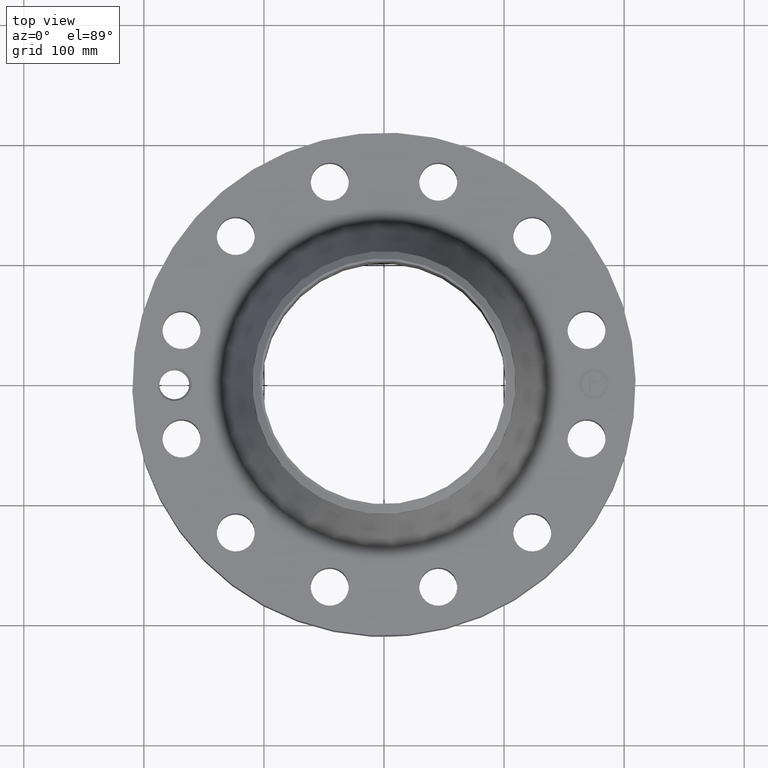
[diagram: clean part render]
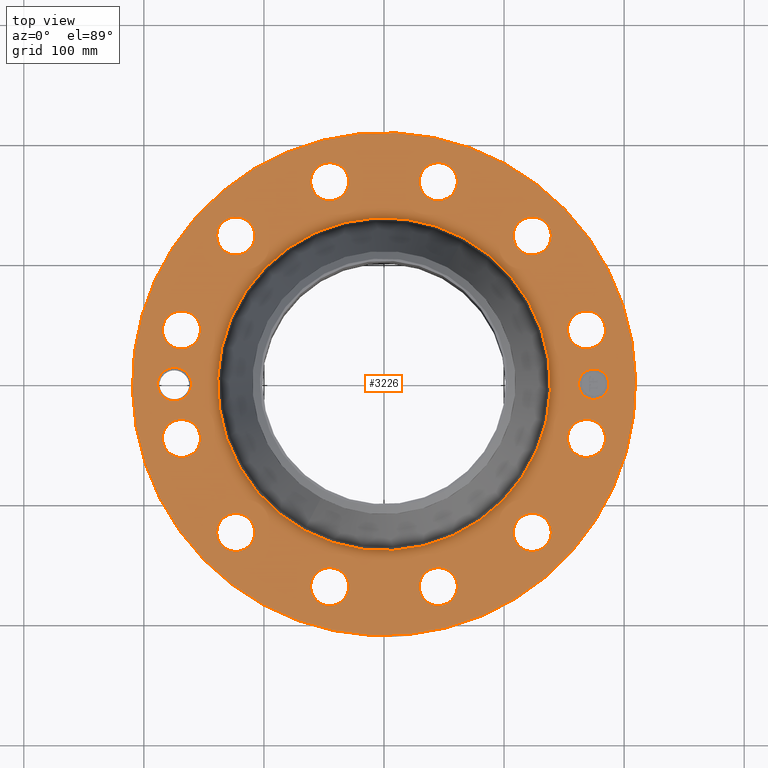
[diagram: same view with one face highlighted and labeled with its STEP entity id]
A machine part, top view. The second image highlights one B-rep face of the part: STEP entity #3226.
In plain terms, the highlighted planar face has unit normal (0, 0, -1).
Its self-contained STEP definition (entity closure, byte-faithful):
#2190=AXIS2_PLACEMENT_3D('Circle Axis2P3D',#2188,#2189,$) ;
#2216=AXIS2_PLACEMENT_3D('Circle Axis2P3D',#2214,#2215,$) ;
#2914=AXIS2_PLACEMENT_3D('Plane Axis2P3D',#2911,#2912,#2913) ;
#2918=AXIS2_PLACEMENT_3D('Circle Axis2P3D',#2916,#2917,$) ;
#2927=AXIS2_PLACEMENT_3D('Circle Axis2P3D',#2925,#2926,$) ;
#2964=AXIS2_PLACEMENT_3D('Circle Axis2P3D',#2962,#2963,$) ;
#2971=AXIS2_PLACEMENT_3D('Circle Axis2P3D',#2969,#2970,$) ;
#2978=AXIS2_PLACEMENT_3D('Circle Axis2P3D',#2976,#2977,$) ;
#2990=AXIS2_PLACEMENT_3D('Circle Axis2P3D',#2988,#2989,$) ;
#2999=AXIS2_PLACEMENT_3D('Circle Axis2P3D',#2997,#2998,$) ;
#3012=AXIS2_PLACEMENT_3D('Circle Axis2P3D',#3010,#3011,$) ;
#3021=AXIS2_PLACEMENT_3D('Circle Axis2P3D',#3019,#3020,$) ;
#3030=AXIS2_PLACEMENT_3D('Circle Axis2P3D',#3028,#3029,$) ;
#3039=AXIS2_PLACEMENT_3D('Circle Axis2P3D',#3037,#3038,$) ;
#3048=AXIS2_PLACEMENT_3D('Circle Axis2P3D',#3046,#3047,$) ;
#3057=AXIS2_PLACEMENT_3D('Circle Axis2P3D',#3055,#3056,$) ;
#3066=AXIS2_PLACEMENT_3D('Circle Axis2P3D',#3064,#3065,$) ;
#3075=AXIS2_PLACEMENT_3D('Circle Axis2P3D',#3073,#3074,$) ;
#3084=AXIS2_PLACEMENT_3D('Circle Axis2P3D',#3082,#3083,$) ;
#3093=AXIS2_PLACEMENT_3D('Circle Axis2P3D',#3091,#3092,$) ;
#3102=AXIS2_PLACEMENT_3D('Circle Axis2P3D',#3100,#3101,$) ;
#3111=AXIS2_PLACEMENT_3D('Circle Axis2P3D',#3109,#3110,$) ;
#3120=AXIS2_PLACEMENT_3D('Circle Axis2P3D',#3118,#3119,$) ;
#3129=AXIS2_PLACEMENT_3D('Circle Axis2P3D',#3127,#3128,$) ;
#3138=AXIS2_PLACEMENT_3D('Circle Axis2P3D',#3136,#3137,$) ;
#3147=AXIS2_PLACEMENT_3D('Circle Axis2P3D',#3145,#3146,$) ;
#3156=AXIS2_PLACEMENT_3D('Circle Axis2P3D',#3154,#3155,$) ;
#3165=AXIS2_PLACEMENT_3D('Circle Axis2P3D',#3163,#3164,$) ;
#3174=AXIS2_PLACEMENT_3D('Circle Axis2P3D',#3172,#3173,$) ;
#3183=AXIS2_PLACEMENT_3D('Circle Axis2P3D',#3181,#3182,$) ;
#3192=AXIS2_PLACEMENT_3D('Circle Axis2P3D',#3190,#3191,$) ;
#3201=AXIS2_PLACEMENT_3D('Circle Axis2P3D',#3199,#3200,$) ;
#3210=AXIS2_PLACEMENT_3D('Circle Axis2P3D',#3208,#3209,$) ;
#3219=AXIS2_PLACEMENT_3D('Circle Axis2P3D',#3217,#3218,$) ;
#2188=CARTESIAN_POINT('Axis2P3D Location',(0.,0.,2.50200000001)) ;
#2192=CARTESIAN_POINT('Vertex',(-2.6157815767,-4.78815605883,2.50200000001)) ;
#2194=CARTESIAN_POINT('Vertex',(2.6157815767,4.78815605883,2.50200000001)) ;
#2214=CARTESIAN_POINT('Axis2P3D Location',(0.,0.,2.50200000001)) ;
#2911=CARTESIAN_POINT('Axis2P3D Location',(0.,8.25000000003,2.50200000001)) ;
#2916=CARTESIAN_POINT('Axis2P3D Location',(0.,0.,2.50200000001)) ;
#2920=CARTESIAN_POINT('Vertex',(3.9552606935,7.24005613562,2.50200000001)) ;
#2922=CARTESIAN_POINT('Vertex',(-3.9552606935,-7.24005613562,2.50200000001)) ;
#2925=CARTESIAN_POINT('Axis2P3D Location',(0.,0.,2.50200000001)) ;
#2935=CARTESIAN_POINT('Control Point',(-6.31250000003,2.23792987641E-015,2.50200000001)) ;
#2936=CARTESIAN_POINT('Control Point',(-6.3144627074,0.0486163942416,2.50200000001)) ;
#2937=CARTESIAN_POINT('Control Point',(-6.32168225685,0.096921544971,2.50200000001)) ;
#2938=CARTESIAN_POINT('Control Point',(-6.33411614782,0.144151132456,2.50200000001)) ;
#2939=CARTESIAN_POINT('Control Point',(-6.3523281623,0.191577689533,2.50200000001)) ;
#2940=CARTESIAN_POINT('Control Point',(-6.375599706,0.236272060628,2.50200000001)) ;
#2941=CARTESIAN_POINT('Control Point',(-6.37660430834,0.238178684845,2.50200000001)) ;
#2942=CARTESIAN_POINT('Control Point',(-6.37761810192,0.240080190953,2.50200000001)) ;
#2943=CARTESIAN_POINT('Control Point',(-6.37864105331,0.241976519561,2.50200000001)) ;
#2944=CARTESIAN_POINT('Vertex',(-6.31250000003,2.23792987641E-015,2.50200000001)) ;
#2946=CARTESIAN_POINT('Vertex',(-6.37864105331,0.241976519561,2.50200000001)) ;
#2950=CARTESIAN_POINT('Control Point',(-6.31250000003,0.,2.50200000001)) ;
#2951=CARTESIAN_POINT('Control Point',(-6.31446331449,-0.0486314333387,2.50200000001)) ;
#2952=CARTESIAN_POINT('Control Point',(-6.32168673113,-0.096951428915,2.50200000001)) ;
#2953=CARTESIAN_POINT('Control Point',(-6.3341191924,-0.14417695463,2.50200000001)) ;
#2954=CARTESIAN_POINT('Control Point',(-6.35234827521,-0.191651047543,2.50200000001)) ;
#2955=CARTESIAN_POINT('Control Point',(-6.37563536412,-0.236368997497,2.50200000001)) ;
#2956=CARTESIAN_POINT('Control Point',(-6.37667433507,-0.238339773859,2.50200000001)) ;
#2957=CARTESIAN_POINT('Control Point',(-6.37772311114,-0.24030503582,2.50200000001)) ;
#2958=CARTESIAN_POINT('Control Point',(-6.3787816546,-0.242264718164,2.50200000001)) ;
#2959=CARTESIAN_POINT('Vertex',(-6.3787816546,-0.242264718164,2.50200000001)) ;
#2962=CARTESIAN_POINT('Axis2P3D Location',(-6.87500000003,1.1189649382E-015,2.50200000001)) ;
#2966=CARTESIAN_POINT('Vertex',(-6.39039890935,-0.264738782418,2.50200000001)) ;
#2969=CARTESIAN_POINT('Axis2P3D Location',(-6.87500000003,1.1189649382E-015,2.50200000001)) ;
#2973=CARTESIAN_POINT('Vertex',(-7.35960109071,0.264738782418,2.50200000001)) ;
#2976=CARTESIAN_POINT('Axis2P3D Location',(-6.87500000003,1.1189649382E-015,2.50200000001)) ;
#2988=CARTESIAN_POINT('Axis2P3D Location',(6.64074005576,-1.77938093509,2.50200000001)) ;
#2992=CARTESIAN_POINT('Vertex',(6.09225095458,-1.47973997346,2.50200000001)) ;
#2994=CARTESIAN_POINT('Vertex',(7.18922915695,-2.07902189672,2.50200000001)) ;
#2997=CARTESIAN_POINT('Axis2P3D Location',(6.64074005576,-1.77938093509,2.50200000001)) ;
#3010=CARTESIAN_POINT('Axis2P3D Location',(4.86135912068,-4.86135912068,2.50200000001)) ;
#3014=CARTESIAN_POINT('Vertex',(5.18654413519,-5.39510035605,2.50200000001)) ;
#3016=CARTESIAN_POINT('Vertex',(4.53617410617,-4.3276178853,2.50200000001)) ;
#3019=CARTESIAN_POINT('Axis2P3D Location',(4.86135912068,-4.86135912068,2.50200000001)) ;
#3028=CARTESIAN_POINT('Axis2P3D Location',(1.77938093509,-6.64074005576,2.50200000001)) ;
#3032=CARTESIAN_POINT('Vertex',(1.79412880089,-7.2655660319,2.50200000001)) ;
#3034=CARTESIAN_POINT('Vertex',(1.76463306928,-6.01591407963,2.50200000001)) ;
#3037=CARTESIAN_POINT('Axis2P3D Location',(1.77938093509,-6.64074005576,2.50200000001)) ;
#3046=CARTESIAN_POINT('Axis2P3D Location',(-1.77938093509,-6.64074005576,2.50200000001)) ;
#3050=CARTESIAN_POINT('Vertex',(-2.07902189672,-7.18922915695,2.50200000001)) ;
#3052=CARTESIAN_POINT('Vertex',(-1.47973997346,-6.09225095458,2.50200000001)) ;
#3055=CARTESIAN_POINT('Axis2P3D Location',(-1.77938093509,-6.64074005576,2.50200000001)) ;
#3064=CARTESIAN_POINT('Axis2P3D Location',(-4.86135912068,-4.86135912068,2.50200000001)) ;
#3068=CARTESIAN_POINT('Vertex',(-5.39510035605,-5.18654413519,2.50200000001)) ;
#3070=CARTESIAN_POINT('Vertex',(-4.3276178853,-4.53617410617,2.50200000001)) ;
#3073=CARTESIAN_POINT('Axis2P3D Location',(-4.86135912068,-4.86135912068,2.50200000001)) ;
#3082=CARTESIAN_POINT('Axis2P3D Location',(-6.64074005576,-1.77938093509,2.50200000001)) ;
#3086=CARTESIAN_POINT('Vertex',(-7.2655660319,-1.79412880089,2.50200000001)) ;
#3088=CARTESIAN_POINT('Vertex',(-6.01591407963,-1.76463306928,2.50200000001)) ;
#3091=CARTESIAN_POINT('Axis2P3D Location',(-6.64074005576,-1.77938093509,2.50200000001)) ;
#3100=CARTESIAN_POINT('Axis2P3D Location',(-6.64074005576,1.77938093509,2.50200000001)) ;
#3104=CARTESIAN_POINT('Vertex',(-7.18922915695,2.07902189672,2.50200000001)) ;
#3106=CARTESIAN_POINT('Vertex',(-6.09225095458,1.47973997346,2.50200000001)) ;
#3109=CARTESIAN_POINT('Axis2P3D Location',(-6.64074005576,1.77938093509,2.50200000001)) ;
#3118=CARTESIAN_POINT('Axis2P3D Location',(-4.86135912068,4.86135912068,2.50200000001)) ;
#3122=CARTESIAN_POINT('Vertex',(-5.18654413519,5.39510035605,2.50200000001)) ;
#3124=CARTESIAN_POINT('Vertex',(-4.53617410617,4.3276178853,2.50200000001)) ;
#3127=CARTESIAN_POINT('Axis2P3D Location',(-4.86135912068,4.86135912068,2.50200000001)) ;
#3136=CARTESIAN_POINT('Axis2P3D Location',(-1.77938093509,6.64074005576,2.50200000001)) ;
#3140=CARTESIAN_POINT('Vertex',(-1.79412880089,7.2655660319,2.50200000001)) ;
#3142=CARTESIAN_POINT('Vertex',(-1.76463306928,6.01591407963,2.50200000001)) ;
#3145=CARTESIAN_POINT('Axis2P3D Location',(-1.77938093509,6.64074005576,2.50200000001)) ;
#3154=CARTESIAN_POINT('Axis2P3D Location',(1.77938093509,6.64074005576,2.50200000001)) ;
#3158=CARTESIAN_POINT('Vertex',(2.07902189672,7.18922915695,2.50200000001)) ;
#3160=CARTESIAN_POINT('Vertex',(1.47973997346,6.09225095458,2.50200000001)) ;
#3163=CARTESIAN_POINT('Axis2P3D Location',(1.77938093509,6.64074005576,2.50200000001)) ;
#3172=CARTESIAN_POINT('Axis2P3D Location',(4.86135912068,4.86135912068,2.50200000001)) ;
#3176=CARTESIAN_POINT('Vertex',(5.39510035605,5.18654413519,2.50200000001)) ;
#3178=CARTESIAN_POINT('Vertex',(4.3276178853,4.53617410617,2.50200000001)) ;
#3181=CARTESIAN_POINT('Axis2P3D Location',(4.86135912068,4.86135912068,2.50200000001)) ;
#3190=CARTESIAN_POINT('Axis2P3D Location',(6.64074005576,1.77938093509,2.50200000001)) ;
#3194=CARTESIAN_POINT('Vertex',(7.2655660319,1.79412880089,2.50200000001)) ;
#3196=CARTESIAN_POINT('Vertex',(6.01591407963,1.76463306928,2.50200000001)) ;
#3199=CARTESIAN_POINT('Axis2P3D Location',(6.64074005576,1.77938093509,2.50200000001)) ;
#3208=CARTESIAN_POINT('Axis2P3D Location',(6.87500000003,0.,2.50200000001)) ;
#3212=CARTESIAN_POINT('Vertex',(6.87500000003,0.499999995002,2.50200000001)) ;
#3214=CARTESIAN_POINT('Vertex',(6.87500000003,-0.499999995002,2.50200000001)) ;
#3217=CARTESIAN_POINT('Axis2P3D Location',(6.87500000003,0.,2.50200000001)) ;
#2189=DIRECTION('Axis2P3D Direction',(0.,0.,-0.0393700787402)) ;
#2215=DIRECTION('Axis2P3D Direction',(0.,0.,-0.0393700787402)) ;
#2912=DIRECTION('Axis2P3D Direction',(0.,0.,-0.0393700787402)) ;
#2913=DIRECTION('Axis2P3D XDirection',(0.0393700787402,0.,0.)) ;
#2917=DIRECTION('Axis2P3D Direction',(0.,0.,-0.0393700787402)) ;
#2926=DIRECTION('Axis2P3D Direction',(0.,0.,-0.0393700787402)) ;
#2963=DIRECTION('Axis2P3D Direction',(0.,0.,-0.0393700787402)) ;
#2970=DIRECTION('Axis2P3D Direction',(0.,0.,-0.0393700787402)) ;
#2977=DIRECTION('Axis2P3D Direction',(0.,0.,-0.0393700787402)) ;
#2989=DIRECTION('Axis2P3D Direction',(0.,0.,-0.0393700787402)) ;
#2998=DIRECTION('Axis2P3D Direction',(0.,0.,-0.0393700787402)) ;
#3011=DIRECTION('Axis2P3D Direction',(0.,0.,-0.0393700787402)) ;
#3020=DIRECTION('Axis2P3D Direction',(0.,0.,-0.0393700787402)) ;
#3029=DIRECTION('Axis2P3D Direction',(0.,0.,-0.0393700787402)) ;
#3038=DIRECTION('Axis2P3D Direction',(0.,0.,-0.0393700787402)) ;
#3047=DIRECTION('Axis2P3D Direction',(0.,0.,-0.0393700787402)) ;
#3056=DIRECTION('Axis2P3D Direction',(0.,0.,-0.0393700787402)) ;
#3065=DIRECTION('Axis2P3D Direction',(0.,0.,-0.0393700787402)) ;
#3074=DIRECTION('Axis2P3D Direction',(0.,0.,-0.0393700787402)) ;
#3083=DIRECTION('Axis2P3D Direction',(0.,0.,-0.0393700787402)) ;
#3092=DIRECTION('Axis2P3D Direction',(0.,0.,-0.0393700787402)) ;
#3101=DIRECTION('Axis2P3D Direction',(0.,0.,-0.0393700787402)) ;
#3110=DIRECTION('Axis2P3D Direction',(0.,0.,-0.0393700787402)) ;
#3119=DIRECTION('Axis2P3D Direction',(0.,0.,-0.0393700787402)) ;
#3128=DIRECTION('Axis2P3D Direction',(0.,0.,-0.0393700787402)) ;
#3137=DIRECTION('Axis2P3D Direction',(0.,0.,-0.0393700787402)) ;
#3146=DIRECTION('Axis2P3D Direction',(0.,0.,-0.0393700787402)) ;
#3155=DIRECTION('Axis2P3D Direction',(0.,0.,-0.0393700787402)) ;
#3164=DIRECTION('Axis2P3D Direction',(0.,0.,-0.0393700787402)) ;
#3173=DIRECTION('Axis2P3D Direction',(0.,0.,-0.0393700787402)) ;
#3182=DIRECTION('Axis2P3D Direction',(0.,0.,-0.0393700787402)) ;
#3191=DIRECTION('Axis2P3D Direction',(0.,0.,-0.0393700787402)) ;
#3200=DIRECTION('Axis2P3D Direction',(0.,0.,-0.0393700787402)) ;
#3209=DIRECTION('Axis2P3D Direction',(0.,0.,-0.0393700787402)) ;
#3218=DIRECTION('Axis2P3D Direction',(0.,0.,-0.0393700787402)) ;
#2931=ORIENTED_EDGE('',*,*,#2924,.F.) ;
#2932=ORIENTED_EDGE('',*,*,#2929,.F.) ;
#2982=ORIENTED_EDGE('',*,*,#2948,.F.) ;
#2983=ORIENTED_EDGE('',*,*,#2961,.T.) ;
#2984=ORIENTED_EDGE('',*,*,#2968,.T.) ;
#2985=ORIENTED_EDGE('',*,*,#2975,.T.) ;
#2986=ORIENTED_EDGE('',*,*,#2980,.T.) ;
#3003=ORIENTED_EDGE('',*,*,#2996,.T.) ;
#3004=ORIENTED_EDGE('',*,*,#3001,.T.) ;
#3007=ORIENTED_EDGE('',*,*,#2196,.T.) ;
#3008=ORIENTED_EDGE('',*,*,#2218,.T.) ;
#3025=ORIENTED_EDGE('',*,*,#3018,.T.) ;
#3026=ORIENTED_EDGE('',*,*,#3023,.T.) ;
#3043=ORIENTED_EDGE('',*,*,#3036,.T.) ;
#3044=ORIENTED_EDGE('',*,*,#3041,.T.) ;
#3061=ORIENTED_EDGE('',*,*,#3054,.T.) ;
#3062=ORIENTED_EDGE('',*,*,#3059,.T.) ;
#3079=ORIENTED_EDGE('',*,*,#3072,.T.) ;
#3080=ORIENTED_EDGE('',*,*,#3077,.T.) ;
#3097=ORIENTED_EDGE('',*,*,#3090,.T.) ;
#3098=ORIENTED_EDGE('',*,*,#3095,.T.) ;
#3115=ORIENTED_EDGE('',*,*,#3108,.T.) ;
#3116=ORIENTED_EDGE('',*,*,#3113,.T.) ;
#3133=ORIENTED_EDGE('',*,*,#3126,.T.) ;
#3134=ORIENTED_EDGE('',*,*,#3131,.T.) ;
#3151=ORIENTED_EDGE('',*,*,#3144,.T.) ;
#3152=ORIENTED_EDGE('',*,*,#3149,.T.) ;
#3169=ORIENTED_EDGE('',*,*,#3162,.T.) ;
#3170=ORIENTED_EDGE('',*,*,#3167,.T.) ;
#3187=ORIENTED_EDGE('',*,*,#3180,.T.) ;
#3188=ORIENTED_EDGE('',*,*,#3185,.T.) ;
#3205=ORIENTED_EDGE('',*,*,#3198,.T.) ;
#3206=ORIENTED_EDGE('',*,*,#3203,.T.) ;
#3223=ORIENTED_EDGE('',*,*,#3216,.T.) ;
#3224=ORIENTED_EDGE('',*,*,#3221,.T.) ;
#2987=FACE_BOUND('',#2981,.T.) ;
#3005=FACE_BOUND('',#3002,.T.) ;
#3009=FACE_BOUND('',#3006,.T.) ;
#3027=FACE_BOUND('',#3024,.T.) ;
#3045=FACE_BOUND('',#3042,.T.) ;
#3063=FACE_BOUND('',#3060,.T.) ;
#3081=FACE_BOUND('',#3078,.T.) ;
#3099=FACE_BOUND('',#3096,.T.) ;
#3117=FACE_BOUND('',#3114,.T.) ;
#3135=FACE_BOUND('',#3132,.T.) ;
#3153=FACE_BOUND('',#3150,.T.) ;
#3171=FACE_BOUND('',#3168,.T.) ;
#3189=FACE_BOUND('',#3186,.T.) ;
#3207=FACE_BOUND('',#3204,.T.) ;
#3225=FACE_BOUND('',#3222,.T.) ;
#3226=ADVANCED_FACE('PartBody',(#2933,#2987,#3005,#3009,#3027,#3045,#3063,#3081,#3099,#3117,#3135,#3153,#3171,#3189,#3207,#3225),#2915,.F.) ;
#2934=B_SPLINE_CURVE_WITH_KNOTS('',5,(#2935,#2936,#2937,#2938,#2939,#2940,#2941,#2942,#2943),.UNSPECIFIED.,.F.,.U.,(6,3,6),(0.,8.47636596167,8.855120132),.UNSPECIFIED.) ;
#2949=B_SPLINE_CURVE_WITH_KNOTS('',5,(#2950,#2951,#2952,#2953,#2954,#2955,#2956,#2957,#2958),.UNSPECIFIED.,.F.,.U.,(6,3,6),(0.,8.47898805828,8.87102627466),.UNSPECIFIED.) ;
#2191=CIRCLE('generated circle',#2190,5.45607475212) ;
#2217=CIRCLE('generated circle',#2216,5.45607475212) ;
#2919=CIRCLE('generated circle',#2918,8.25000000003) ;
#2928=CIRCLE('generated circle',#2927,8.25000000003) ;
#2965=CIRCLE('generated circle',#2964,0.552200000002) ;
#2972=CIRCLE('generated circle',#2971,0.552200000002) ;
#2979=CIRCLE('generated circle',#2978,0.552200000002) ;
#2991=CIRCLE('generated circle',#2990,0.625000000002) ;
#3000=CIRCLE('generated circle',#2999,0.625000000002) ;
#3013=CIRCLE('generated circle',#3012,0.625000000003) ;
#3022=CIRCLE('generated circle',#3021,0.625000000003) ;
#3031=CIRCLE('generated circle',#3030,0.625000000003) ;
#3040=CIRCLE('generated circle',#3039,0.625000000003) ;
#3049=CIRCLE('generated circle',#3048,0.625000000002) ;
#3058=CIRCLE('generated circle',#3057,0.625000000002) ;
#3067=CIRCLE('generated circle',#3066,0.625000000003) ;
#3076=CIRCLE('generated circle',#3075,0.625000000003) ;
#3085=CIRCLE('generated circle',#3084,0.625000000003) ;
#3094=CIRCLE('generated circle',#3093,0.625000000003) ;
#3103=CIRCLE('generated circle',#3102,0.625000000002) ;
#3112=CIRCLE('generated circle',#3111,0.625000000002) ;
#3121=CIRCLE('generated circle',#3120,0.625000000003) ;
#3130=CIRCLE('generated circle',#3129,0.625000000003) ;
#3139=CIRCLE('generated circle',#3138,0.625000000003) ;
#3148=CIRCLE('generated circle',#3147,0.625000000003) ;
#3157=CIRCLE('generated circle',#3156,0.625000000002) ;
#3166=CIRCLE('generated circle',#3165,0.625000000002) ;
#3175=CIRCLE('generated circle',#3174,0.625000000003) ;
#3184=CIRCLE('generated circle',#3183,0.625000000003) ;
#3193=CIRCLE('generated circle',#3192,0.625000000003) ;
#3202=CIRCLE('generated circle',#3201,0.625000000003) ;
#3211=CIRCLE('generated circle',#3210,0.499999995002) ;
#3220=CIRCLE('generated circle',#3219,0.499999995002) ;
#2196=EDGE_CURVE('',#2193,#2195,#2191,.T.) ;
#2218=EDGE_CURVE('',#2195,#2193,#2217,.T.) ;
#2924=EDGE_CURVE('',#2921,#2923,#2919,.T.) ;
#2929=EDGE_CURVE('',#2923,#2921,#2928,.T.) ;
#2948=EDGE_CURVE('',#2945,#2947,#2934,.T.) ;
#2961=EDGE_CURVE('',#2945,#2960,#2949,.T.) ;
#2968=EDGE_CURVE('',#2960,#2967,#2965,.T.) ;
#2975=EDGE_CURVE('',#2967,#2974,#2972,.T.) ;
#2980=EDGE_CURVE('',#2974,#2947,#2979,.T.) ;
#2996=EDGE_CURVE('',#2993,#2995,#2991,.T.) ;
#3001=EDGE_CURVE('',#2995,#2993,#3000,.T.) ;
#3018=EDGE_CURVE('',#3015,#3017,#3013,.T.) ;
#3023=EDGE_CURVE('',#3017,#3015,#3022,.T.) ;
#3036=EDGE_CURVE('',#3033,#3035,#3031,.T.) ;
#3041=EDGE_CURVE('',#3035,#3033,#3040,.T.) ;
#3054=EDGE_CURVE('',#3051,#3053,#3049,.T.) ;
#3059=EDGE_CURVE('',#3053,#3051,#3058,.T.) ;
#3072=EDGE_CURVE('',#3069,#3071,#3067,.T.) ;
#3077=EDGE_CURVE('',#3071,#3069,#3076,.T.) ;
#3090=EDGE_CURVE('',#3087,#3089,#3085,.T.) ;
#3095=EDGE_CURVE('',#3089,#3087,#3094,.T.) ;
#3108=EDGE_CURVE('',#3105,#3107,#3103,.T.) ;
#3113=EDGE_CURVE('',#3107,#3105,#3112,.T.) ;
#3126=EDGE_CURVE('',#3123,#3125,#3121,.T.) ;
#3131=EDGE_CURVE('',#3125,#3123,#3130,.T.) ;
#3144=EDGE_CURVE('',#3141,#3143,#3139,.T.) ;
#3149=EDGE_CURVE('',#3143,#3141,#3148,.T.) ;
#3162=EDGE_CURVE('',#3159,#3161,#3157,.T.) ;
#3167=EDGE_CURVE('',#3161,#3159,#3166,.T.) ;
#3180=EDGE_CURVE('',#3177,#3179,#3175,.T.) ;
#3185=EDGE_CURVE('',#3179,#3177,#3184,.T.) ;
#3198=EDGE_CURVE('',#3195,#3197,#3193,.T.) ;
#3203=EDGE_CURVE('',#3197,#3195,#3202,.T.) ;
#3216=EDGE_CURVE('',#3213,#3215,#3211,.T.) ;
#3221=EDGE_CURVE('',#3215,#3213,#3220,.T.) ;
#2930=EDGE_LOOP('',(#2931,#2932)) ;
#2981=EDGE_LOOP('',(#2982,#2983,#2984,#2985,#2986)) ;
#3002=EDGE_LOOP('',(#3003,#3004)) ;
#3006=EDGE_LOOP('',(#3007,#3008)) ;
#3024=EDGE_LOOP('',(#3025,#3026)) ;
#3042=EDGE_LOOP('',(#3043,#3044)) ;
#3060=EDGE_LOOP('',(#3061,#3062)) ;
#3078=EDGE_LOOP('',(#3079,#3080)) ;
#3096=EDGE_LOOP('',(#3097,#3098)) ;
#3114=EDGE_LOOP('',(#3115,#3116)) ;
#3132=EDGE_LOOP('',(#3133,#3134)) ;
#3150=EDGE_LOOP('',(#3151,#3152)) ;
#3168=EDGE_LOOP('',(#3169,#3170)) ;
#3186=EDGE_LOOP('',(#3187,#3188)) ;
#3204=EDGE_LOOP('',(#3205,#3206)) ;
#3222=EDGE_LOOP('',(#3223,#3224)) ;
#2933=FACE_OUTER_BOUND('',#2930,.T.) ;
#2915=PLANE('',#2914) ;
#2193=VERTEX_POINT('',#2192) ;
#2195=VERTEX_POINT('',#2194) ;
#2921=VERTEX_POINT('',#2920) ;
#2923=VERTEX_POINT('',#2922) ;
#2945=VERTEX_POINT('',#2944) ;
#2947=VERTEX_POINT('',#2946) ;
#2960=VERTEX_POINT('',#2959) ;
#2967=VERTEX_POINT('',#2966) ;
#2974=VERTEX_POINT('',#2973) ;
#2993=VERTEX_POINT('',#2992) ;
#2995=VERTEX_POINT('',#2994) ;
#3015=VERTEX_POINT('',#3014) ;
#3017=VERTEX_POINT('',#3016) ;
#3033=VERTEX_POINT('',#3032) ;
#3035=VERTEX_POINT('',#3034) ;
#3051=VERTEX_POINT('',#3050) ;
#3053=VERTEX_POINT('',#3052) ;
#3069=VERTEX_POINT('',#3068) ;
#3071=VERTEX_POINT('',#3070) ;
#3087=VERTEX_POINT('',#3086) ;
#3089=VERTEX_POINT('',#3088) ;
#3105=VERTEX_POINT('',#3104) ;
#3107=VERTEX_POINT('',#3106) ;
#3123=VERTEX_POINT('',#3122) ;
#3125=VERTEX_POINT('',#3124) ;
#3141=VERTEX_POINT('',#3140) ;
#3143=VERTEX_POINT('',#3142) ;
#3159=VERTEX_POINT('',#3158) ;
#3161=VERTEX_POINT('',#3160) ;
#3177=VERTEX_POINT('',#3176) ;
#3179=VERTEX_POINT('',#3178) ;
#3195=VERTEX_POINT('',#3194) ;
#3197=VERTEX_POINT('',#3196) ;
#3213=VERTEX_POINT('',#3212) ;
#3215=VERTEX_POINT('',#3214) ;